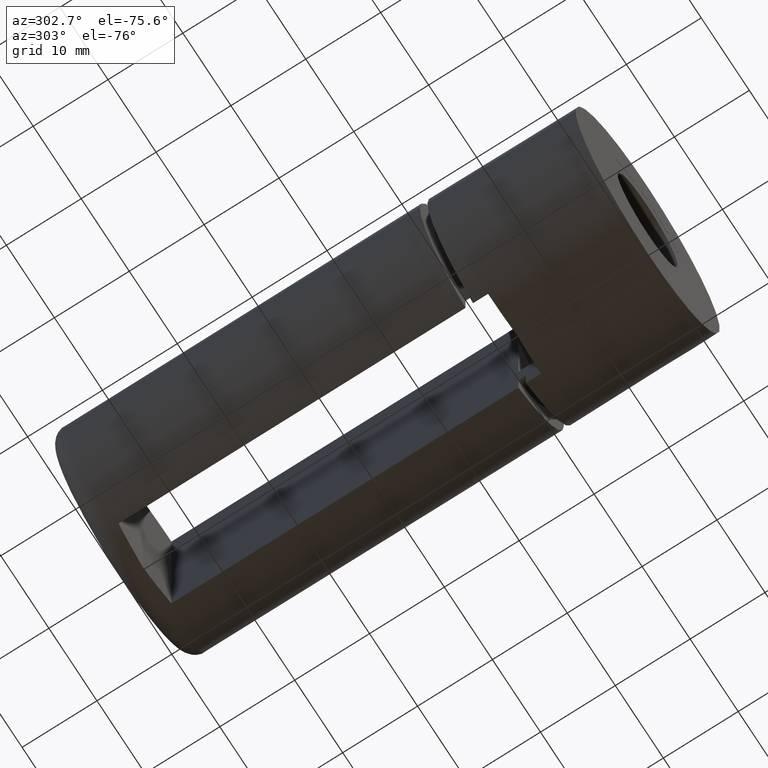
[diagram: clean part render]
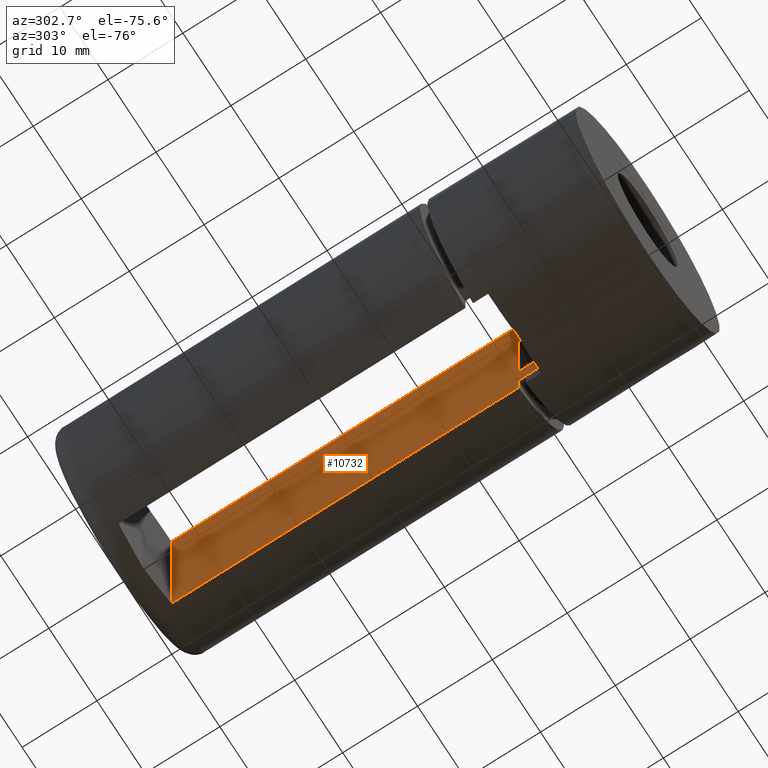
[diagram: same view with one face highlighted and labeled with its STEP entity id]
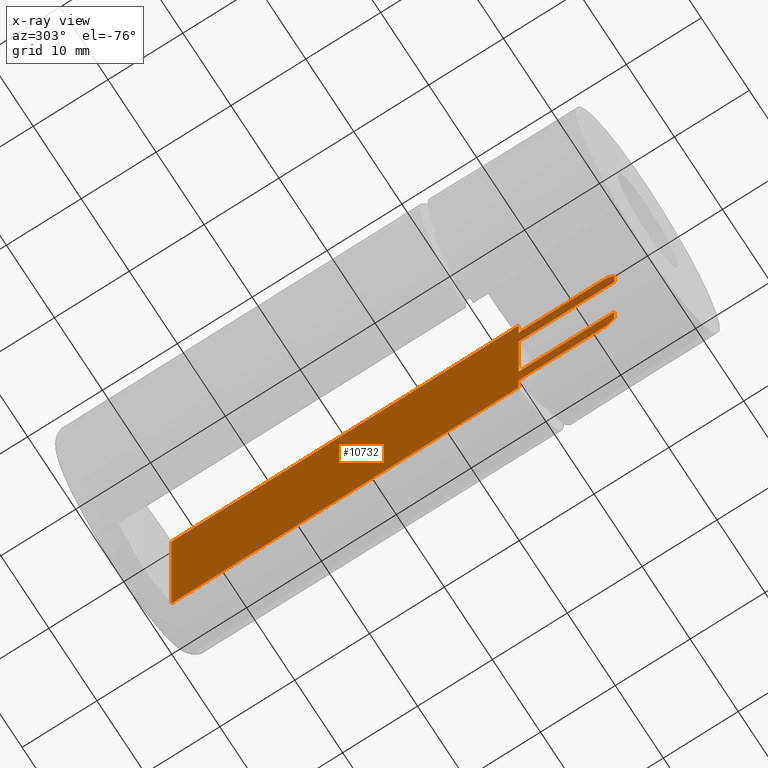
[diagram: x-ray of the same camera — body ghosted, the highlighted face saturated]
A machine part, auxiliary view. The second image highlights one B-rep face of the part: STEP entity #10732.
The next image is the same camera in x-ray: the body ghosted, the highlighted face saturated — about 4% of this face is hidden behind the body in this view.
In plain terms, the highlighted planar face has unit normal (1, 0, 0).
Its self-contained STEP definition (entity closure, byte-faithful):
#124 = LINE ( 'NONE', #14944, #8324 ) ;
#209 = ORIENTED_EDGE ( 'NONE', *, *, #12808, .F. ) ;
#386 = ORIENTED_EDGE ( 'NONE', *, *, #3345, .F. ) ;
#402 = DIRECTION ( 'NONE',  ( -0.0000000000000000000, -0.0000000000000000000, 1.000000000000000000 ) ) ;
#713 = ORIENTED_EDGE ( 'NONE', *, *, #8234, .F. ) ;
#858 = LINE ( 'NONE', #8700, #9659 ) ;
#1038 = DIRECTION ( 'NONE',  ( 0.0000000000000000000, 1.000000000000000000, 0.0000000000000000000 ) ) ;
#1202 = CARTESIAN_POINT ( 'NONE',  ( 5.500000000000000900, 51.14999999999999900, 13.95528573695286500 ) ) ;
#1254 = CARTESIAN_POINT ( 'NONE',  ( 5.499999999999999100, 63.61918428849094900, -9.965390512884418700 ) ) ;
#1347 = VECTOR ( 'NONE', #6391, 1000.000000000000000 ) ;
#1404 = CARTESIAN_POINT ( 'NONE',  ( 5.500000000000000000, 63.95000000000001000, -6.360652745248293000E-016 ) ) ;
#1505 = VERTEX_POINT ( 'NONE', #5445 ) ;
#1558 = CARTESIAN_POINT ( 'NONE',  ( 5.500000000000000900, 63.95000000000001000, 9.583970993278311900 ) ) ;
#1574 = VERTEX_POINT ( 'NONE', #14277 ) ;
#1678 = CARTESIAN_POINT ( 'NONE',  ( 5.500000000000000900, 63.95000000000001000, 6.805328794408102200 ) ) ;
#1998 = VECTOR ( 'NONE', #16519, 1000.000000000000000 ) ;
#2062 = CARTESIAN_POINT ( 'NONE',  ( 5.499999999999999100, 63.95000000000001000, -6.805328794408104000 ) ) ;
#2163 = B_SPLINE_CURVE_WITH_KNOTS ( 'NONE', 3,
 ( #7953, #1254, #11932, #13149 ),
 .UNSPECIFIED., .F., .F.,
 ( 4, 4 ),
 ( 1.734723475976807100E-018, 0.001514654363115884200 ),
 .UNSPECIFIED. ) ;
#2405 = ORIENTED_EDGE ( 'NONE', *, *, #12515, .F. ) ;
#2446 = VECTOR ( 'NONE', #402, 1000.000000000000000 ) ;
#2808 = LINE ( 'NONE', #14350, #1347 ) ;
#2820 = EDGE_CURVE ( 'NONE', #4127, #13355, #15496, .T. ) ;
#2873 = ORIENTED_EDGE ( 'NONE', *, *, #2820, .F. ) ;
#2905 = VERTEX_POINT ( 'NONE', #1678 ) ;
#3020 = CARTESIAN_POINT ( 'NONE',  ( 5.500000000000000900, 26.40126265847082700, 6.805328794408102200 ) ) ;
#3069 = LINE ( 'NONE', #1404, #9149 ) ;
#3084 = ORIENTED_EDGE ( 'NONE', *, *, #7249, .T. ) ;
#3193 = VERTEX_POINT ( 'NONE', #16683 ) ;
#3248 = CARTESIAN_POINT ( 'NONE',  ( 5.500000000000000900, 62.94999999999998900, 10.72159036710506000 ) ) ;
#3345 = EDGE_CURVE ( 'NONE', #16567, #11762, #858, .T. ) ;
#3371 = DIRECTION ( 'NONE',  ( 1.156482317317871500E-016, -0.0000000000000000000, 1.000000000000000000 ) ) ;
#3487 = ORIENTED_EDGE ( 'NONE', *, *, #14773, .T. ) ;
#3489 = VECTOR ( 'NONE', #13035, 1000.000000000000000 ) ;
#3718 = EDGE_CURVE ( 'NONE', #2905, #11762, #10898, .T. ) ;
#3881 = CARTESIAN_POINT ( 'NONE',  ( 5.499999999999996400, -9.849999999999997900, -30.00000000000000400 ) ) ;
#4123 = LINE ( 'NONE', #8474, #13067 ) ;
#4127 = VERTEX_POINT ( 'NONE', #14836 ) ;
#4379 = CARTESIAN_POINT ( 'NONE',  ( 5.500000000000000900, 51.14999999999999900, -15.00000000000000000 ) ) ;
#4803 = VERTEX_POINT ( 'NONE', #1558 ) ;
#5445 = CARTESIAN_POINT ( 'NONE',  ( 5.500000000000006200, 4.788242786056748000, 13.95528573695286100 ) ) ;
#5610 = LINE ( 'NONE', #12421, #1998 ) ;
#5678 = CARTESIAN_POINT ( 'NONE',  ( 5.500000000000000900, 51.14999999999999900, -10.72159036710506200 ) ) ;
#5830 = ORIENTED_EDGE ( 'NONE', *, *, #14786, .F. ) ;
#6181 = VERTEX_POINT ( 'NONE', #1202 ) ;
#6391 = DIRECTION ( 'NONE',  ( -0.0000000000000000000, -1.000000000000000000, -0.0000000000000000000 ) ) ;
#6757 = VERTEX_POINT ( 'NONE', #3248 ) ;
#6921 = DIRECTION ( 'NONE',  ( 0.0000000000000000000, 1.000000000000000000, 0.0000000000000000000 ) ) ;
#7097 = LINE ( 'NONE', #8227, #16240 ) ;
#7249 = EDGE_CURVE ( 'NONE', #16567, #8380, #10177, .T. ) ;
#7263 = ORIENTED_EDGE ( 'NONE', *, *, #3718, .T. ) ;
#7305 = VECTOR ( 'NONE', #12839, 1000.000000000000000 ) ;
#7953 = CARTESIAN_POINT ( 'NONE',  ( 5.499999999999999100, 63.95000000000001000, -9.583970993278313700 ) ) ;
#8060 = CARTESIAN_POINT ( 'NONE',  ( 5.500000000000000900, 51.14999999999999900, -13.95528573695286300 ) ) ;
#8105 = DIRECTION ( 'NONE',  ( -1.156482317317871500E-016, 0.0000000000000000000, -1.000000000000000000 ) ) ;
#8227 = CARTESIAN_POINT ( 'NONE',  ( 5.500000000000000000, 63.95000000000001000, -6.360652745248293000E-016 ) ) ;
#8234 = EDGE_CURVE ( 'NONE', #8616, #10649, #124, .T. ) ;
#8283 = CARTESIAN_POINT ( 'NONE',  ( 5.500000000000000900, 63.28561648060674100, 10.34439086098336700 ) ) ;
#8324 = VECTOR ( 'NONE', #6921, 1000.000000000000000 ) ;
#8333 = ORIENTED_EDGE ( 'NONE', *, *, #10793, .T. ) ;
#8380 = VERTEX_POINT ( 'NONE', #2062 ) ;
#8474 = CARTESIAN_POINT ( 'NONE',  ( 5.500000000000006200, 4.788242786056748000, -15.00000000000000000 ) ) ;
#8616 = VERTEX_POINT ( 'NONE', #5678 ) ;
#8700 = CARTESIAN_POINT ( 'NONE',  ( 5.499999999999996400, 51.14999999999999900, -30.00000000000000400 ) ) ;
#9149 = VECTOR ( 'NONE', #16175, 1000.000000000000000 ) ;
#9197 = ORIENTED_EDGE ( 'NONE', *, *, #15194, .T. ) ;
#9342 = ORIENTED_EDGE ( 'NONE', *, *, #13634, .T. ) ;
#9659 = VECTOR ( 'NONE', #3371, 1000.000000000000000 ) ;
#9827 = EDGE_CURVE ( 'NONE', #6181, #1505, #2808, .T. ) ;
#9878 = ORIENTED_EDGE ( 'NONE', *, *, #15372, .T. ) ;
#10177 = LINE ( 'NONE', #11708, #3489 ) ;
#10214 = CARTESIAN_POINT ( 'NONE',  ( 5.499999999999999100, 62.94999999999998900, -10.72159036710506000 ) ) ;
#10306 = CARTESIAN_POINT ( 'NONE',  ( 5.500000000000000900, 51.14999999999999900, -15.00000000000000000 ) ) ;
#10339 = EDGE_LOOP ( 'NONE', ( #386, #3084, #9197, #8333, #713, #209, #2873, #3487, #16466, #2405, #5830, #9878, #9342, #7263 ) ) ;
#10415 = LINE ( 'NONE', #4379, #2446 ) ;
#10539 = PLANE ( 'NONE',  #12234 ) ;
#10582 = FACE_OUTER_BOUND ( 'NONE', #10339, .T. ) ;
#10649 = VERTEX_POINT ( 'NONE', #10214 ) ;
#10732 = ADVANCED_FACE ( 'NONE', ( #10582 ), #10539, .F. ) ;
#10793 = EDGE_CURVE ( 'NONE', #1574, #10649, #2163, .T. ) ;
#10898 = LINE ( 'NONE', #3020, #13603 ) ;
#11708 = CARTESIAN_POINT ( 'NONE',  ( 5.499999999999999100, 26.40126265847082700, -6.805328794408104000 ) ) ;
#11762 = VERTEX_POINT ( 'NONE', #16489 ) ;
#11932 = CARTESIAN_POINT ( 'NONE',  ( 5.499999999999999100, 63.28561648060672700, -10.34439086098336300 ) ) ;
#12220 = DIRECTION ( 'NONE',  ( 0.0000000000000000000, -1.000000000000000000, 0.0000000000000000000 ) ) ;
#12234 = AXIS2_PLACEMENT_3D ( 'NONE', #3881, #15733, #14513 ) ;
#12421 = CARTESIAN_POINT ( 'NONE',  ( 5.500000000000000900, 63.95000000000001000, 10.72159036710506000 ) ) ;
#12515 = EDGE_CURVE ( 'NONE', #3193, #6181, #10415, .T. ) ;
#12545 = DIRECTION ( 'NONE',  ( -0.0000000000000000000, -0.0000000000000000000, 1.000000000000000000 ) ) ;
#12808 = EDGE_CURVE ( 'NONE', #13355, #8616, #17296, .T. ) ;
#12839 = DIRECTION ( 'NONE',  ( -0.0000000000000000000, -0.0000000000000000000, 1.000000000000000000 ) ) ;
#13035 = DIRECTION ( 'NONE',  ( -0.0000000000000000000, 1.000000000000000000, -0.0000000000000000000 ) ) ;
#13067 = VECTOR ( 'NONE', #12545, 1000.000000000000000 ) ;
#13149 = CARTESIAN_POINT ( 'NONE',  ( 5.499999999999999100, 62.94999999999998900, -10.72159036710506000 ) ) ;
#13355 = VERTEX_POINT ( 'NONE', #8060 ) ;
#13387 = VECTOR ( 'NONE', #1038, 1000.000000000000000 ) ;
#13603 = VECTOR ( 'NONE', #12220, 1000.000000000000000 ) ;
#13634 = EDGE_CURVE ( 'NONE', #4803, #2905, #3069, .T. ) ;
#13702 = CARTESIAN_POINT ( 'NONE',  ( 5.500000000000000900, 62.94999999999998900, 10.72159036710506000 ) ) ;
#13758 = CARTESIAN_POINT ( 'NONE',  ( 5.500000000000000900, 63.95000000000001000, 9.583970993278311900 ) ) ;
#13815 = CARTESIAN_POINT ( 'NONE',  ( 5.500000000000000900, 63.61918428849094900, 9.965390512884420500 ) ) ;
#14125 = CARTESIAN_POINT ( 'NONE',  ( 5.500000000000000900, 51.14999999999999900, -13.95528573695286300 ) ) ;
#14277 = CARTESIAN_POINT ( 'NONE',  ( 5.499999999999999100, 63.95000000000001000, -9.583970993278313700 ) ) ;
#14350 = CARTESIAN_POINT ( 'NONE',  ( 5.500000000000000900, 51.14999999999999900, 13.95528573695286300 ) ) ;
#14513 = DIRECTION ( 'NONE',  ( -1.156482317317871500E-016, 0.0000000000000000000, -1.000000000000000000 ) ) ;
#14573 = B_SPLINE_CURVE_WITH_KNOTS ( 'NONE', 3,
 ( #13702, #8283, #13815, #13758 ),
 .UNSPECIFIED., .F., .F.,
 ( 4, 4 ),
 ( 0.0000000000000000000, 0.001514654363115885500 ),
 .UNSPECIFIED. ) ;
#14773 = EDGE_CURVE ( 'NONE', #4127, #1505, #4123, .T. ) ;
#14786 = EDGE_CURVE ( 'NONE', #6757, #3193, #5610, .T. ) ;
#14836 = CARTESIAN_POINT ( 'NONE',  ( 5.500000000000006200, 4.788242786056748000, -13.95528573695286100 ) ) ;
#14944 = CARTESIAN_POINT ( 'NONE',  ( 5.499999999999999100, 63.95000000000001000, -10.72159036710506000 ) ) ;
#15194 = EDGE_CURVE ( 'NONE', #8380, #1574, #7097, .T. ) ;
#15354 = CARTESIAN_POINT ( 'NONE',  ( 5.499999999999999100, 51.14999999999999900, -6.805328794408104000 ) ) ;
#15372 = EDGE_CURVE ( 'NONE', #6757, #4803, #14573, .T. ) ;
#15496 = LINE ( 'NONE', #14125, #13387 ) ;
#15733 = DIRECTION ( 'NONE',  ( 1.000000000000000000, 0.0000000000000000000, -1.156482317317871500E-016 ) ) ;
#16175 = DIRECTION ( 'NONE',  ( -1.156482317317871500E-016, 0.0000000000000000000, -1.000000000000000000 ) ) ;
#16240 = VECTOR ( 'NONE', #8105, 1000.000000000000000 ) ;
#16466 = ORIENTED_EDGE ( 'NONE', *, *, #9827, .F. ) ;
#16489 = CARTESIAN_POINT ( 'NONE',  ( 5.500000000000000900, 51.14999999999999900, 6.805328794408102200 ) ) ;
#16519 = DIRECTION ( 'NONE',  ( -0.0000000000000000000, -1.000000000000000000, -0.0000000000000000000 ) ) ;
#16567 = VERTEX_POINT ( 'NONE', #15354 ) ;
#16683 = CARTESIAN_POINT ( 'NONE',  ( 5.500000000000000900, 51.14999999999999900, 10.72159036710506200 ) ) ;
#17296 = LINE ( 'NONE', #10306, #7305 ) ;